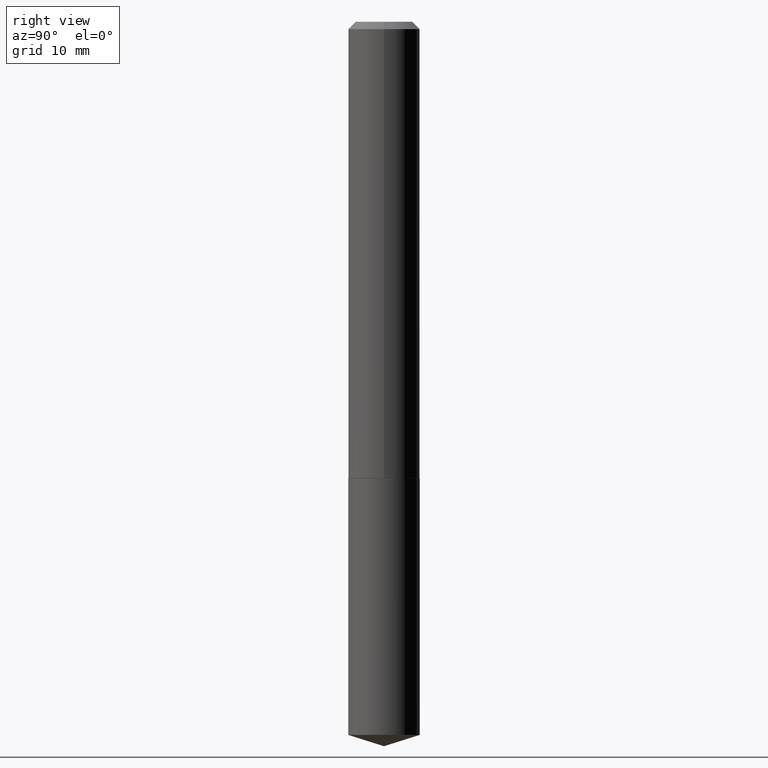
[diagram: clean part render]
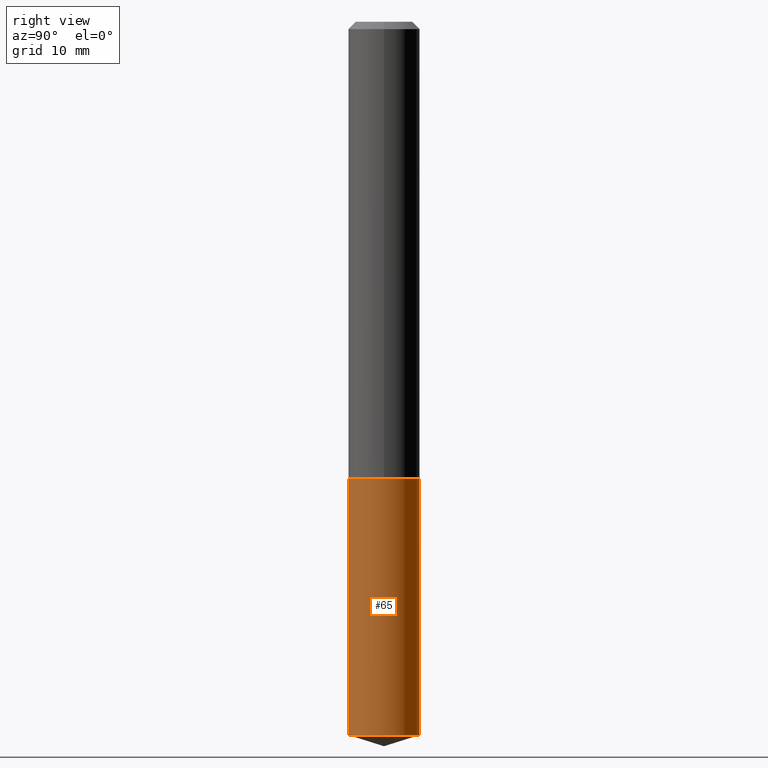
[diagram: same view with one face highlighted and labeled with its STEP entity id]
A machine part, right view. The second image highlights one B-rep face of the part: STEP entity #65.
In plain terms, the highlighted cylindrical surface (edge-blend (fillet) strip) has radius 3.9002 mm, axis along (-0, 0, 1).
Its self-contained STEP definition (entity closure, byte-faithful):
#3 = DIRECTION ( 'NONE',  ( -2.445604235534817824E-29, 3.491287396306242088E-15, 1.000000000000000000 ) ) ;
#5 = CARTESIAN_POINT ( 'NONE',  ( 7.487650971556116702E-29, -1.068995466523567618E-14, -3.061785870967631773 ) ) ;
#29 = VERTEX_POINT ( 'NONE', #272 ) ;
#33 = DIRECTION ( 'NONE',  ( -2.445604235534817824E-29, 3.491287396306242088E-15, 1.000000000000000000 ) ) ;
#46 = AXIS2_PLACEMENT_3D ( 'NONE', #94, #390, #98 ) ;
#61 = CIRCLE ( 'NONE', #343, 0.1535499999999999921 ) ;
#63 = EDGE_LOOP ( 'NONE', ( #170, #310, #341, #373 ) ) ;
#65 = ADVANCED_FACE ( 'NONE', ( #248 ), #359, .T. ) ;
#94 = CARTESIAN_POINT ( 'NONE',  ( 4.794586141406578598E-29, -6.845398312935870373E-15, -1.960599999999999898 ) ) ;
#98 = DIRECTION ( 'NONE',  ( -6.982962677686266711E-15, -1.000000000000000000, 3.558252026915354491E-15 ) ) ;
#120 = CARTESIAN_POINT ( 'NONE',  ( 1.091038370759681505E-15, 0.1535499999999931364, -1.960600000000000342 ) ) ;
#139 = VECTOR ( 'NONE', #33, 39.37007874015748143 ) ;
#146 = DIRECTION ( 'NONE',  ( -2.445604235534817824E-29, 3.491287396306242088E-15, 1.000000000000000000 ) ) ;
#152 = VERTEX_POINT ( 'NONE', #338 ) ;
#166 = LINE ( 'NONE', #366, #139 ) ;
#170 = ORIENTED_EDGE ( 'NONE', *, *, #262, .T. ) ;
#205 = AXIS2_PLACEMENT_3D ( 'NONE', #5, #3, #257 ) ;
#220 = EDGE_CURVE ( 'NONE', #351, #258, #166, .T. ) ;
#248 = FACE_OUTER_BOUND ( 'NONE', #63, .T. ) ;
#257 = DIRECTION ( 'NONE',  ( -6.982962677686266711E-15, -1.000000000000000000, 3.558252026915354491E-15 ) ) ;
#258 = VERTEX_POINT ( 'NONE', #280 ) ;
#262 = EDGE_CURVE ( 'NONE', #351, #29, #336, .T. ) ;
#272 = CARTESIAN_POINT ( 'NONE',  ( 1.091038370759708721E-15, 0.1535499999999893339, -3.061785870967632217 ) ) ;
#277 = VECTOR ( 'NONE', #318, 39.37007874015748143 ) ;
#280 = CARTESIAN_POINT ( 'NONE',  ( -1.072233919158678223E-15, -0.1535500000000068477, -1.960599999999999232 ) ) ;
#292 = DIRECTION ( 'NONE',  ( -6.982962677686266711E-15, -1.000000000000000000, 3.558252026915354491E-15 ) ) ;
#310 = ORIENTED_EDGE ( 'NONE', *, *, #372, .T. ) ;
#318 = DIRECTION ( 'NONE',  ( -2.445604235534817824E-29, 3.491287396306242088E-15, 1.000000000000000000 ) ) ;
#336 = CIRCLE ( 'NONE', #205, 0.1535499999999999921 ) ;
#338 = CARTESIAN_POINT ( 'NONE',  ( 1.091038370759708918E-15, 0.1535499999999931642, -1.960600000000000342 ) ) ;
#341 = ORIENTED_EDGE ( 'NONE', *, *, #383, .F. ) ;
#343 = AXIS2_PLACEMENT_3D ( 'NONE', #377, #146, #292 ) ;
#348 = CARTESIAN_POINT ( 'NONE',  ( -1.072233919158651402E-15, -0.1535500000000107057, -3.061785870967631329 ) ) ;
#351 = VERTEX_POINT ( 'NONE', #348 ) ;
#359 = CYLINDRICAL_SURFACE ( 'NONE', #46, 0.1535499999999999921 ) ;
#366 = CARTESIAN_POINT ( 'NONE',  ( -1.072233919158678223E-15, -0.1535500000000068477, -1.960599999999999232 ) ) ;
#372 = EDGE_CURVE ( 'NONE', #29, #152, #378, .T. ) ;
#373 = ORIENTED_EDGE ( 'NONE', *, *, #220, .F. ) ;
#377 = CARTESIAN_POINT ( 'NONE',  ( 4.794586141406578598E-29, -6.845398312935870373E-15, -1.960599999999999898 ) ) ;
#378 = LINE ( 'NONE', #120, #277 ) ;
#383 = EDGE_CURVE ( 'NONE', #258, #152, #61, .T. ) ;
#390 = DIRECTION ( 'NONE',  ( -2.445604235534817824E-29, 3.491287396306242088E-15, 1.000000000000000000 ) ) ;